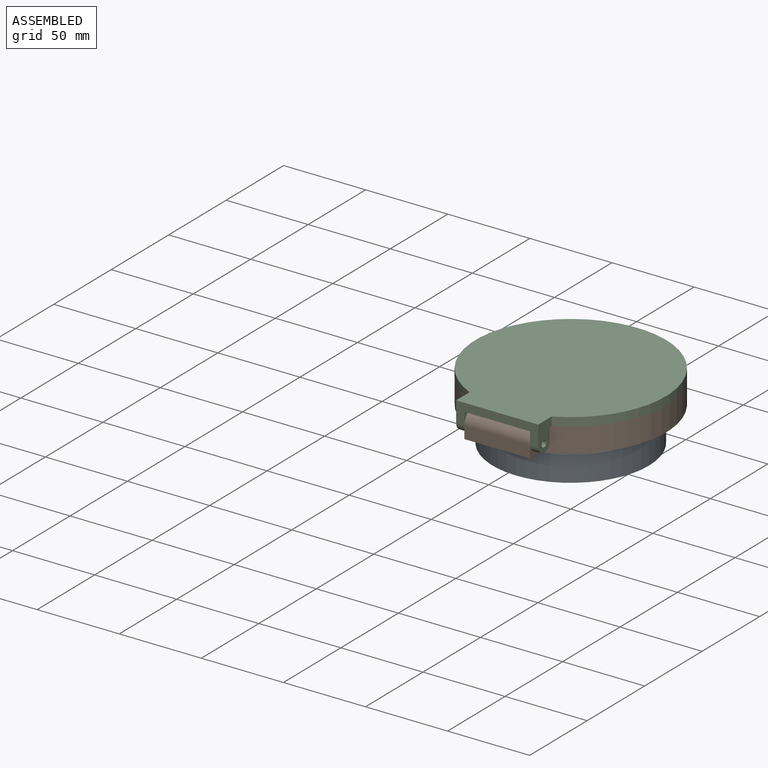
[diagram: assembled view]
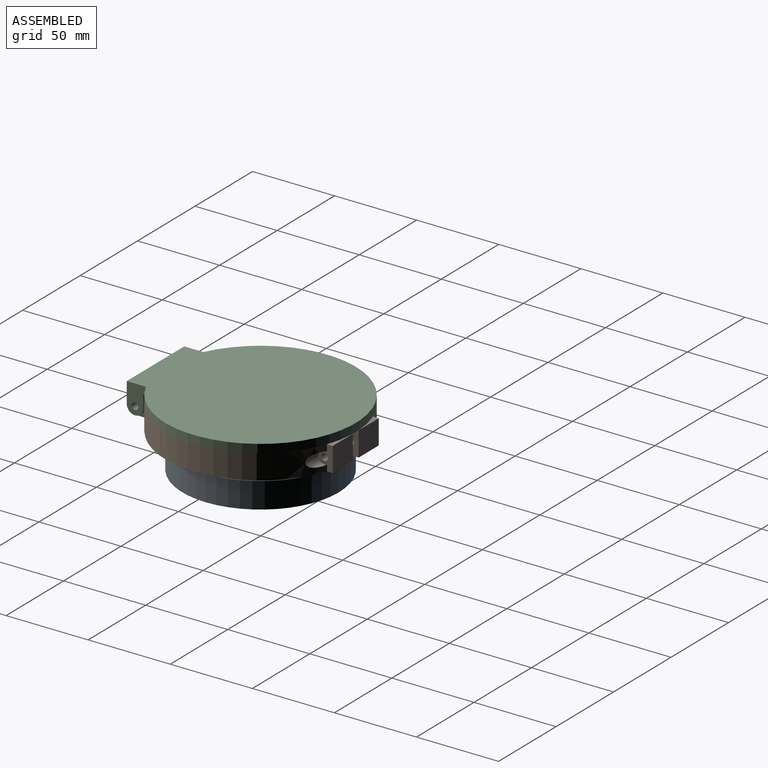
[diagram: assembled view, second angle]
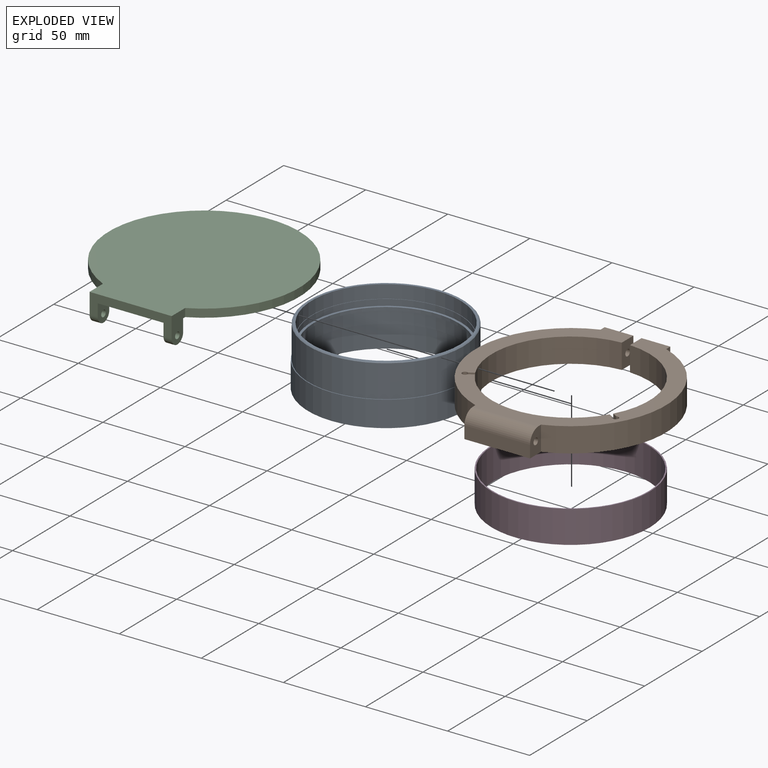
[diagram: exploded view]
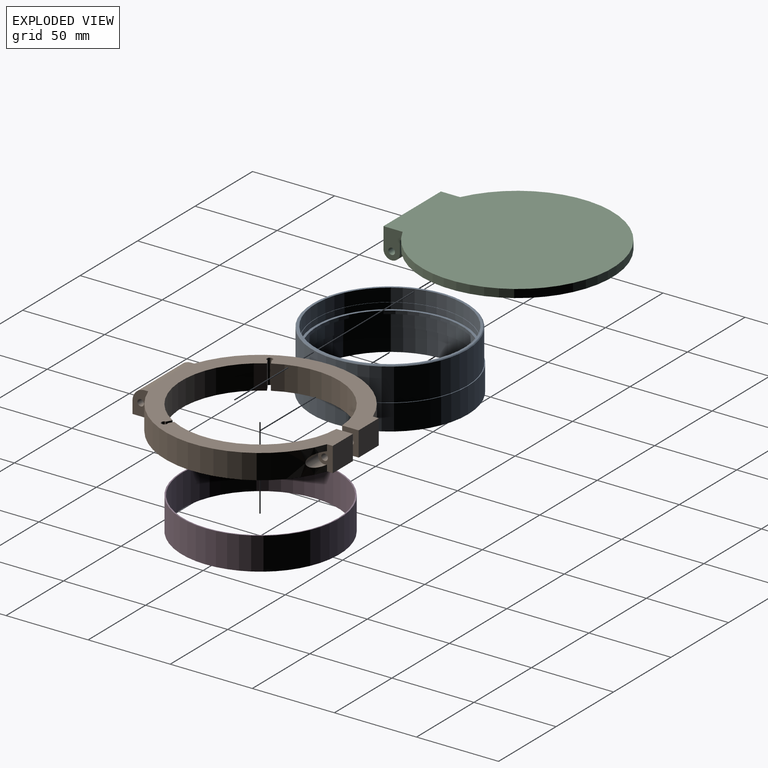
[diagram: exploded view, second angle]
ASSEMBLY  parts=4 mates=2
PART A: 17 faces, bbox 95.2x95.2x36 mm
  f0: plane 93.32x93.32mm, normal (0,0,1), area 412.6mm2, adj f1,f16
  f1: cylinder r=45.23mm len=90.46mm, axis (0,0,1), area 2273.5mm2, adj f0,f2
  f2: plane 90.46x90.46mm, normal (0,0,1), area 65.2mm2, adj f1,f3
  f3: cylinder r=45mm len=90mm, axis (0,0,1), area 848.2mm2, adj f2,f4
  f4: plane 91x91mm, normal (0,0,-1), area 142.2mm2, adj f3,f5
  f5: cylinder r=45.5mm len=91mm, axis (0,0,1), area 284.5mm2, adj f4,f6
  f6: plane 91x91mm, normal (0,0,1), area 421.8mm2, adj f5,f7
  f7: cylinder r=44mm len=88mm, axis (0,0,1), area 554.3mm2, adj f6,f8
  f8: plane 91x91mm, normal (0,0,-1), area 421.8mm2, adj f7,f9
  f9: cylinder r=45.5mm len=91mm, axis (0,0,1), area 2287.1mm2, adj f8,f10
  f10: plane 93x93mm, normal (0,0,-1), area 289mm2, adj f9,f11
  f11: cylinder r=46.5mm len=93mm, axis (0,0,1), area 4090.4mm2, adj f10,f12
  f12: plane 95.2x95.2mm, normal (0,0,-1), area 325.2mm2, adj f11,f13
  f13: cylinder r=47.6mm len=95.2mm, axis (0,0,1), area 4694.7mm2, adj f12,f14
  f14: plane 95.2x95.2mm, normal (0,0,1), area 133.9mm2, adj f13,f15
  f15: cylinder r=47.15mm len=94.3mm, axis (0,0,1), area 5869.3mm2, adj f14,f16
  f16: cone r=46.66mm half-angle=45deg, axis (0,0,-1), area 204.6mm2, adj f0,f15
PART B: 27 faces, bbox 116x122x15 mm
  f0: plane 15x9.56mm, normal (-1,0,0), area 118.7mm2, adj f2,f5,f6,f21,f25,f26
  f1: plane 15x9.56mm, normal (1,0,0), area 118.7mm2, adj f2,f3,f6,f21,f25,f26
  f2: plane 116x114.5mm, normal (0,0,1), area 3281mm2, adj f0,f1,f3,f4,f5,f7,f8,f9
  f3: cylinder r=58mm len=108.89mm, axis (0,0,1), area 2036mm2, adj f1,f2,f4,f21,f24
  f4: plane 15x9mm, normal (1,0,0), area 77.2mm2, adj f2,f3,f7,f21,f23,f24
  f5: cylinder r=58mm len=108.89mm, axis (0,0,1), area 2092.4mm2, adj f0,f2,f20,f21,f22
  f6: plane 40x7.5mm, normal (0,-1,0), area 300mm2, adj f0,f1,f21,f26
  f7: plane 17.5x15mm, normal (0,1,0), area 262.5mm2, adj f2,f4,f8,f21
  f8: plane 15x10.07mm, normal (-1,0,0), area 138.4mm2, adj f2,f7,f9,f21,f23
  f9: cylinder r=48mm len=71.06mm, axis (0,0,1), area 1455.4mm2, adj f2,f8,f10,f21
  f10: plane 15x3.1mm, normal (-0.5,-0.87,0), area 53.6mm2, adj f2,f9,f11,f21
  f11: cylinder r=1.75mm len=15mm, axis (0,0,1), area 133mm2, adj f2,f10,f12,f21
  f12: plane 15x3.1mm, normal (0.5,0.87,0), area 53.6mm2, adj f2,f11,f13,f21
  f13: cylinder r=48mm len=82.12mm, axis (0,0,1), area 1478mm2, adj f2,f12,f14,f21
  f14: plane 15x3.1mm, normal (-0.5,0.87,0), area 53.6mm2, adj f2,f13,f15,f21
  f15: cylinder r=1.75mm len=15mm, axis (0,0,1), area 133mm2, adj f2,f14,f16,f21
  f16: plane 15x3.1mm, normal (0.5,-0.87,0), area 53.6mm2, adj f2,f15,f17,f21
  f17: cylinder r=48mm len=71.06mm, axis (0,0,1), area 1455.4mm2, adj f2,f16,f18,f21
  f18: plane 15x10.07mm, normal (1,0,0), area 138.4mm2, adj f2,f17,f19,f21,f22
  f19: plane 17.5x15mm, normal (0,1,0), area 262.5mm2, adj f2,f18,f20,f21
  f20: plane 15x3.56mm, normal (-1,0,0), area 52.3mm2, adj f2,f5,f19,f21,f22
  f21: plane 122x116mm, normal (0,0,-1), area 3581mm2, adj f0,f1,f3,f4,f5,f6,f7,f8
  f22: cylinder r=2mm len=25.12mm, axis (1,0,0), area 264.5mm2, adj f5,f18,f20
  f23: cylinder r=2mm len=17.5mm, axis (1,0,0), area 219.9mm2, adj f4,f8
  f24: cylinder r=4mm len=11.04mm, axis (-1,0,0), area 112.1mm2, adj f3,f4
  f25: cylinder r=2mm len=40mm, axis (1,0,0), area 502.7mm2, adj f0,f1
  f26: cylinder r=7.5mm len=40mm, axis (1,0,0), area 471.2mm2, adj f0,f1,f2,f6
PART C: 16 faces, bbox 116.9x122.4x17.5 mm
  f0: plane 122x116mm, normal (0,0,-1), area 1699.9mm2, adj f1,f2,f3,f4,f5,f6,f7,f9
  f1: plane 17.5x11.66mm, normal (-1,0,0), area 160mm2, adj f0,f6,f7,f8,f9,f10,f11
  f2: plane 12.5x10mm, normal (-1,0,0), area 101.7mm2, adj f0,f3,f7,f12,f13
  f3: plane 7.5x5mm, normal (0,1,0), area 37.5mm2, adj f0,f2,f5,f13
  f4: plane 12.5x10mm, normal (1,0,0), area 101.7mm2, adj f0,f7,f9,f10,f11
  f5: plane 17.5x11.66mm, normal (1,0,0), area 160mm2, adj f0,f3,f6,f7,f8,f12,f13
  f6: cylinder r=58mm len=116mm, axis (0,0,-1), area 1563.7mm2, adj f0,f1,f5,f8
  f7: plane 50x12.5mm, normal (0,-1,0), area 325mm2, adj f0,f1,f2,f4,f5,f8,f11,f13
  f8: plane 122x116mm, normal (0,0,1), area 10960.8mm2, adj f1,f5,f6,f7
  f9: plane 7.5x5mm, normal (0,1,0), area 37.5mm2, adj f0,f1,f4,f11
  f10: cylinder r=2mm len=5mm, axis (1,0,0), area 62.8mm2, adj f1,f4
  f11: cylinder r=5mm len=10mm, axis (1,0,0), area 78.5mm2, adj f1,f4,f7,f9
  f12: cylinder r=2mm len=5mm, axis (1,0,0), area 62.8mm2, adj f2,f5
  f13: cylinder r=5mm len=10mm, axis (1,0,0), area 78.5mm2, adj f2,f3,f5,f7
  f14: torus R=53mm, axis (0,0,1), area 1046.2mm2, adj f0,f15
  f15: plane 104x104mm, normal (0,0,-1), area 8494.9mm2, adj f14
PART D: 4 faces, bbox 96x96x19.8 mm
  f0: plane 96x96mm, normal (0,0,1), area 224.4mm2, adj f1,f3
  f1: cylinder r=47.25mm len=94.5mm, axis (0,0,1), area 5878.2mm2, adj f0,f2
  f2: plane 96x96mm, normal (0,0,-1), area 224.4mm2, adj f1,f3
  f3: cylinder r=48mm len=96mm, axis (0,0,1), area 5971.5mm2, adj f0,f2
PLACE A at identity
PLACE B at identity
PLACE C at identity
PLACE D at identity
MATE revolute B.f25 <-> C.f10  axis (1,0,0) through (20,-59,-7.5)mm
MATE revolute B.f17 <-> D.f1  axis (0,0,1) through (0,0,0)mm
